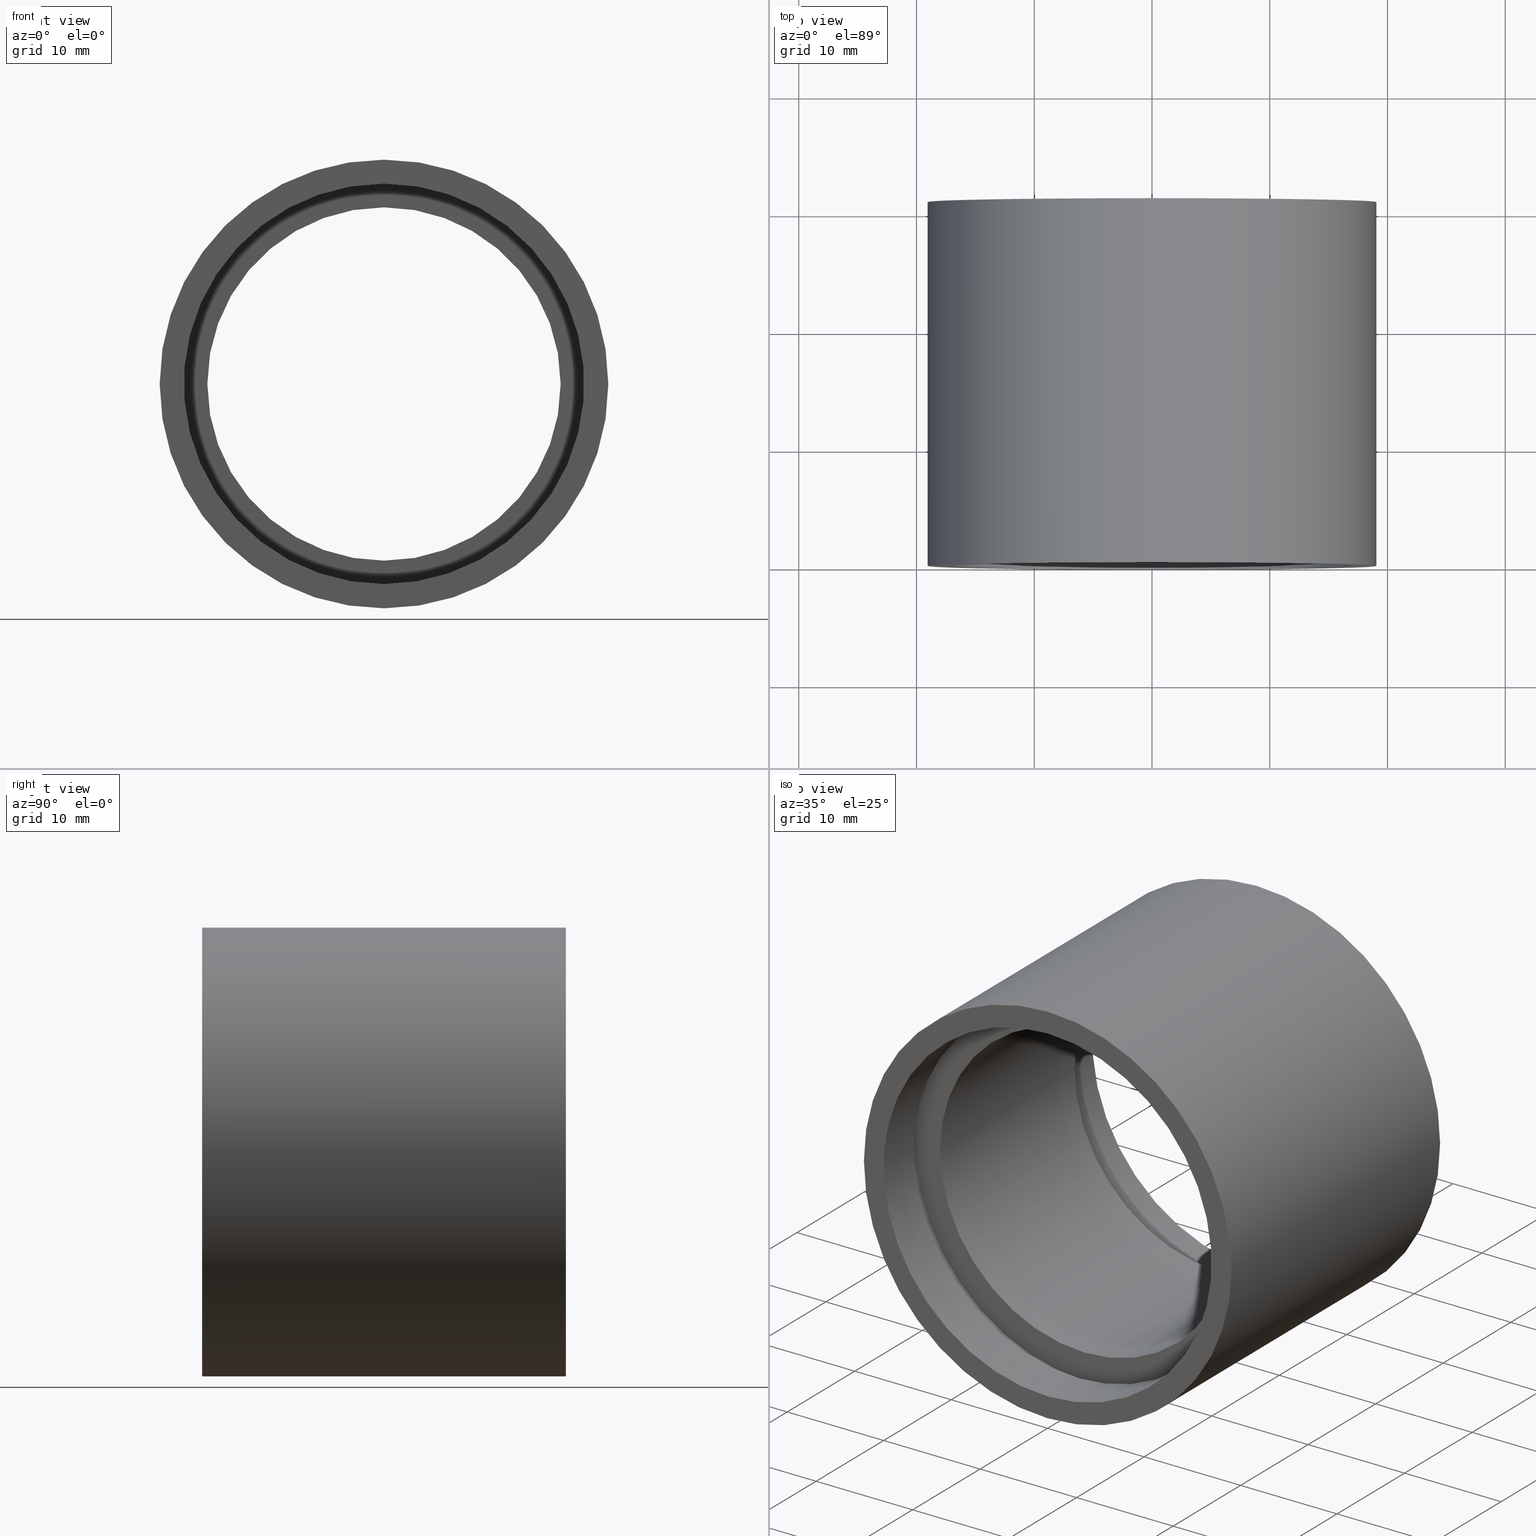
[diagram: canonical four-view strip — front | top / right | iso, engineering-drawing reading convention]
A machine part, canonical four-view strip (front | top / right | iso — engineering-drawing reading convention). The complete STEP part file that produces these views, byte-faithful:
ISO-10303-21;
HEADER;
FILE_DESCRIPTION (( 'STEP AP214' ),
    '1' );
FILE_NAME ('503042.STEP',
    '2019-09-06T03:13:48',
    ( '' ),
    ( '' ),
    'SwSTEP 2.0',
    'SolidWorks 2016',
    '' );
FILE_SCHEMA (( 'AUTOMOTIVE_DESIGN' ));
ENDSEC;

DATA;
#1 = AXIS2_PLACEMENT_3D ( 'NONE', #426, #274, #476 ) ;
#2 = COLOUR_RGB ( '',1.000000000000000000, 1.000000000000000000, 1.000000000000000000 ) ;
#3 = PRESENTATION_LAYER_ASSIGNMENT (  '', '', ( #36 ) ) ;
#4 = VECTOR ( 'NONE', #438, 1000.000000000000000 ) ;
#5 = EDGE_LOOP ( 'NONE', ( #102, #66 ) ) ;
#6 = CIRCLE ( 'NONE', #462, 15.00000000000001800 ) ;
#7 = AXIS2_PLACEMENT_3D ( 'NONE', #107, #63, #256 ) ;
#8 = VERTEX_POINT ( 'NONE', #590 ) ;
#9 = FILL_AREA_STYLE ('',( #364 ) ) ;
#10 = ORIENTED_EDGE ( 'NONE', *, *, #419, .T. ) ;
#11 = COLOUR_RGB ( '',1.000000000000000000, 1.000000000000000000, 1.000000000000000000 ) ;
#12 = CARTESIAN_POINT ( 'NONE',  ( 0.0000000000000000000, 161.3761669434274500, 0.0000000000000000000 ) ) ;
#13 = VERTEX_POINT ( 'NONE', #588 ) ;
#14 = CARTESIAN_POINT ( 'NONE',  ( 0.0000000000000000000, 161.3761669434274500, 0.0000000000000000000 ) ) ;
#15 = COLOUR_RGB ( '',1.000000000000000000, 1.000000000000000000, 1.000000000000000000 ) ;
#16 = ORIENTED_EDGE ( 'NONE', *, *, #591, .T. ) ;
#17 = PRESENTATION_STYLE_ASSIGNMENT (( #259 ) ) ;
#18 = DIRECTION ( 'NONE',  ( -0.0000000000000000000, 1.000000000000000000, -0.0000000000000000000 ) ) ;
#19 = PLANE ( 'NONE',  #288 ) ;
#20 = DIRECTION ( 'NONE',  ( -0.0000000000000000000, 1.000000000000000000, -0.0000000000000000000 ) ) ;
#21 = DIRECTION ( 'NONE',  ( 0.0000000000000000000, 0.0000000000000000000, 1.000000000000000000 ) ) ;
#22 = SURFACE_SIDE_STYLE ('',( #59 ) ) ;
#23 = CARTESIAN_POINT ( 'NONE',  ( 0.0000000000000000000, 5.499999999999976900, 0.0000000000000000000 ) ) ;
#24 = EDGE_LOOP ( 'NONE', ( #579, #221, #175, #420 ) ) ;
#25 = CIRCLE ( 'NONE', #84, 17.60000000000001600 ) ;
#26 =( NAMED_UNIT ( * ) PLANE_ANGLE_UNIT ( ) SI_UNIT ( $, .RADIAN. ) );
#27 = DIRECTION ( 'NONE',  ( -0.0000000000000000000, 1.000000000000000000, -0.0000000000000000000 ) ) ;
#28 = CARTESIAN_POINT ( 'NONE',  ( 0.0000000000000000000, 161.3761669434274500, 17.60000000000002300 ) ) ;
#29 = EDGE_CURVE ( 'NONE', #100, #381, #222, .T. ) ;
#30 =( NAMED_UNIT ( * ) PLANE_ANGLE_UNIT ( ) SI_UNIT ( $, .RADIAN. ) );
#31 = CARTESIAN_POINT ( 'NONE',  ( 0.0000000000000000000, 25.39999999999997700, 17.60000000000001600 ) ) ;
#32 = ORIENTED_EDGE ( 'NONE', *, *, #467, .F. ) ;
#33 = STYLED_ITEM ( 'NONE', ( #622 ), #94 ) ;
#34 = VECTOR ( 'NONE', #71, 1000.000000000000000 ) ;
#35 = CARTESIAN_POINT ( 'NONE',  ( 0.0000000000000000000, 5.499999999999976900, 15.00000000000001800 ) ) ;
#36 = STYLED_ITEM ( 'NONE', ( #350 ), #443 ) ;
#37 = CARTESIAN_POINT ( 'NONE',  ( 0.0000000000000000000, 30.89999999999998400, 17.00000000000002100 ) ) ;
#38 =( LENGTH_UNIT ( ) NAMED_UNIT ( * ) SI_UNIT ( .MILLI., .METRE. ) );
#39 = DIRECTION ( 'NONE',  ( -0.0000000000000000000, 1.000000000000000000, -0.0000000000000000000 ) ) ;
#40 =( GEOMETRIC_REPRESENTATION_CONTEXT ( 3 ) GLOBAL_UNCERTAINTY_ASSIGNED_CONTEXT ( ( #353 ) ) GLOBAL_UNIT_ASSIGNED_CONTEXT ( ( #226, #490, #388 ) ) REPRESENTATION_CONTEXT ( 'NONE', 'WORKASPACE' ) );
#41 = ADVANCED_FACE ( 'NONE', ( #165, #305 ), #197, .F. ) ;
#42 = LINE ( 'NONE', #199, #252 ) ;
#43 = CYLINDRICAL_SURFACE ( 'NONE', #198, 17.60000000000002300 ) ;
#44 = DIRECTION ( 'NONE',  ( 1.000000000000000000, 0.0000000000000000000, 0.0000000000000000000 ) ) ;
#45 = ADVANCED_FACE ( 'NONE', ( #454 ), #397, .T. ) ;
#46 =( NAMED_UNIT ( * ) PLANE_ANGLE_UNIT ( ) SI_UNIT ( $, .RADIAN. ) );
#47 = EDGE_LOOP ( 'NONE', ( #95, #119, #55, #582 ) ) ;
#48 = LINE ( 'NONE', #28, #34 ) ;
#49 = UNCERTAINTY_MEASURE_WITH_UNIT (LENGTH_MEASURE( 1.000000000000000100E-005 ), #238, 'distance_accuracy_value', 'NONE');
#50 = AXIS2_PLACEMENT_3D ( 'NONE', #14, #64, #321 ) ;
#51 = FACE_OUTER_BOUND ( 'NONE', #440, .T. ) ;
#52 = ADVANCED_FACE ( 'NONE', ( #293, #540 ), #412, .F. ) ;
#53 = AXIS2_PLACEMENT_3D ( 'NONE', #12, #463, #328 ) ;
#54 = EDGE_LOOP ( 'NONE', ( #183, #494 ) ) ;
#55 = ORIENTED_EDGE ( 'NONE', *, *, #559, .T. ) ;
#56 = DIRECTION ( 'NONE',  ( -0.0000000000000000000, 1.000000000000000000, -0.0000000000000000000 ) ) ;
#57 = EDGE_CURVE ( 'NONE', #249, #99, #480, .T. ) ;
#58 = EDGE_LOOP ( 'NONE', ( #470, #499 ) ) ;
#59 = SURFACE_STYLE_FILL_AREA ( #208 ) ;
#60 = ORIENTED_EDGE ( 'NONE', *, *, #500, .F. ) ;
#61 = AXIS2_PLACEMENT_3D ( 'NONE', #409, #410, #415 ) ;
#62 = AXIS2_PLACEMENT_3D ( 'NONE', #106, #465, #157 ) ;
#63 = DIRECTION ( 'NONE',  ( -0.0000000000000000000, 1.000000000000000000, -0.0000000000000000000 ) ) ;
#64 = DIRECTION ( 'NONE',  ( -0.0000000000000000000, 1.000000000000000000, -0.0000000000000000000 ) ) ;
#65 = DIRECTION ( 'NONE',  ( -0.0000000000000000000, 1.000000000000000000, -0.0000000000000000000 ) ) ;
#66 = ORIENTED_EDGE ( 'NONE', *, *, #228, .F. ) ;
#67 = LINE ( 'NONE', #163, #294 ) ;
#68 = CARTESIAN_POINT ( 'NONE',  ( 17.60000000000001600, 26.39999999999997700, 0.0000000000000000000 ) ) ;
#69 = DIRECTION ( 'NONE',  ( -0.0000000000000000000, 1.000000000000000000, -0.0000000000000000000 ) ) ;
#70 =( NAMED_UNIT ( * ) PLANE_ANGLE_UNIT ( ) SI_UNIT ( $, .RADIAN. ) );
#71 = DIRECTION ( 'NONE',  ( -0.0000000000000000000, 1.000000000000000000, -0.0000000000000000000 ) ) ;
#72 = ORIENTED_EDGE ( 'NONE', *, *, #477, .F. ) ;
#73 = EDGE_LOOP ( 'NONE', ( #261, #285, #372, #241 ) ) ;
#74 = FILL_AREA_STYLE ('',( #277 ) ) ;
#75 = CARTESIAN_POINT ( 'NONE',  ( 0.0000000000000000000, 161.3761669434274500, 0.0000000000000000000 ) ) ;
#76 = CIRCLE ( 'NONE', #401, 17.60000000000002300 ) ;
#77 = DIRECTION ( 'NONE',  ( -0.0000000000000000000, 1.000000000000000000, -0.0000000000000000000 ) ) ;
#78 = PRESENTATION_LAYER_ASSIGNMENT (  '', '', ( #97 ) ) ;
#79 = CARTESIAN_POINT ( 'NONE',  ( 0.0000000000000000000, 26.39999999999997700, 17.00000000000002100 ) ) ;
#80 = DIRECTION ( 'NONE',  ( 0.0000000000000000000, 0.0000000000000000000, 1.000000000000000000 ) ) ;
#81 = PLANE ( 'NONE',  #342 ) ;
#82 = CYLINDRICAL_SURFACE ( 'NONE', #50, 17.00000000000002100 ) ;
#83 = VERTEX_POINT ( 'NONE', #147 ) ;
#84 = AXIS2_PLACEMENT_3D ( 'NONE', #519, #379, #521 ) ;
#85 = CIRCLE ( 'NONE', #349, 17.60000000000002300 ) ;
#86 = APPLICATION_PROTOCOL_DEFINITION ( 'draft international standard', 'automotive_design', 1998, #352 ) ;
#87 = DIRECTION ( 'NONE',  ( 0.0000000000000000000, 0.0000000000000000000, 1.000000000000000000 ) ) ;
#88 = ORIENTED_EDGE ( 'NONE', *, *, #214, .T. ) ;
#89 = ORIENTED_EDGE ( 'NONE', *, *, #329, .T. ) ;
#90 = ADVANCED_FACE ( 'NONE', ( #166 ), #563, .F. ) ;
#91 = COLOUR_RGB ( '',1.000000000000000000, 1.000000000000000000, 1.000000000000000000 ) ;
#92 = EDGE_CURVE ( 'NONE', #624, #100, #42, .T. ) ;
#93 = AXIS2_PLACEMENT_3D ( 'NONE', #436, #27, #130 ) ;
#94 = ADVANCED_FACE ( 'NONE', ( #502 ), #460, .F. ) ;
#95 = ORIENTED_EDGE ( 'NONE', *, *, #457, .F. ) ;
#96 = CIRCLE ( 'NONE', #520, 17.00000000000002100 ) ;
#97 = STYLED_ITEM ( 'NONE', ( #525 ), #543 ) ;
#98 = AXIS2_PLACEMENT_3D ( 'NONE', #370, #552, #310 ) ;
#99 = VERTEX_POINT ( 'NONE', #160 ) ;
#100 = VERTEX_POINT ( 'NONE', #466 ) ;
#101 = COLOUR_RGB ( '',1.000000000000000000, 1.000000000000000000, 1.000000000000000000 ) ;
#102 = ORIENTED_EDGE ( 'NONE', *, *, #121, .F. ) ;
#103 = CARTESIAN_POINT ( 'NONE',  ( 0.0000000000000000000, 5.499999999999976900, 0.0000000000000000000 ) ) ;
#104 = DIRECTION ( 'NONE',  ( 0.0000000000000000000, -1.000000000000000000, 0.0000000000000000000 ) ) ;
#105 = CARTESIAN_POINT ( 'NONE',  ( 0.0000000000000000000, 161.3761669434274500, 19.05000000000002200 ) ) ;
#106 = CARTESIAN_POINT ( 'NONE',  ( 0.0000000000000000000, 26.39999999999997700, 0.0000000000000000000 ) ) ;
#107 = CARTESIAN_POINT ( 'NONE',  ( 0.0000000000000000000, 25.39999999999997700, 0.0000000000000000000 ) ) ;
#108 = FACE_BOUND ( 'NONE', #137, .T. ) ;
#109 = VERTEX_POINT ( 'NONE', #512 ) ;
#110 = DIRECTION ( 'NONE',  ( 0.0000000000000000000, 0.0000000000000000000, 1.000000000000000000 ) ) ;
#111 = EDGE_CURVE ( 'NONE', #13, #624, #140, .T. ) ;
#112 = DIRECTION ( 'NONE',  ( -0.0000000000000000000, 1.000000000000000000, -0.0000000000000000000 ) ) ;
#113 = DIRECTION ( 'NONE',  ( -0.0000000000000000000, 1.000000000000000000, -0.0000000000000000000 ) ) ;
#114 = CARTESIAN_POINT ( 'NONE',  ( 0.0000000000000000000, 4.499999999999976000, 17.60000000000002300 ) ) ;
#115 = FILL_AREA_STYLE_COLOUR ( '', #101 ) ;
#116 = ORIENTED_EDGE ( 'NONE', *, *, #146, .F. ) ;
#117 = ORIENTED_EDGE ( 'NONE', *, *, #604, .F. ) ;
#118 = FACE_BOUND ( 'NONE', #143, .T. ) ;
#119 = ORIENTED_EDGE ( 'NONE', *, *, #156, .T. ) ;
#120 = DIRECTION ( 'NONE',  ( 0.0000000000000000000, -0.0000000000000000000, -1.000000000000000000 ) ) ;
#121 = EDGE_CURVE ( 'NONE', #242, #109, #441, .T. ) ;
#122 = SURFACE_STYLE_USAGE ( .BOTH. , #171 ) ;
#123 = PLANE ( 'NONE',  #336 ) ;
#124 = CARTESIAN_POINT ( 'NONE',  ( 2.332952152375710400E-015, 161.3761669434274500, -19.05000000000002200 ) ) ;
#125 = MECHANICAL_DESIGN_GEOMETRIC_PRESENTATION_REPRESENTATION (  '', ( #33 ), #542 ) ;
#126 = ORIENTED_EDGE ( 'NONE', *, *, #92, .T. ) ;
#127 = FILL_AREA_STYLE_COLOUR ( '', #91 ) ;
#128 = AXIS2_PLACEMENT_3D ( 'NONE', #375, #20, #605 ) ;
#129 = CARTESIAN_POINT ( 'NONE',  ( 0.0000000000000000000, 161.3761669434274500, 17.00000000000002100 ) ) ;
#130 = DIRECTION ( 'NONE',  ( 0.0000000000000000000, 0.0000000000000000000, 1.000000000000000000 ) ) ;
#131 = VECTOR ( 'NONE', #286, 1000.000000000000000 ) ;
#132 = ORIENTED_EDGE ( 'NONE', *, *, #29, .T. ) ;
#133 = AXIS2_PLACEMENT_3D ( 'NONE', #306, #56, #551 ) ;
#134 = ADVANCED_FACE ( 'NONE', ( #585 ), #167, .F. ) ;
#135 = PRODUCT_CONTEXT ( 'NONE', #541, 'mechanical' ) ;
#136 =( NAMED_UNIT ( * ) PLANE_ANGLE_UNIT ( ) SI_UNIT ( $, .RADIAN. ) );
#137 = EDGE_LOOP ( 'NONE', ( #503, #439 ) ) ;
#138 = COLOUR_RGB ( '',1.000000000000000000, 1.000000000000000000, 1.000000000000000000 ) ;
#139 = VERTEX_POINT ( 'NONE', #114 ) ;
#140 = CIRCLE ( 'NONE', #455, 15.00000000000001800 ) ;
#141 = AXIS2_PLACEMENT_3D ( 'NONE', #348, #297, #44 ) ;
#142 = EDGE_CURVE ( 'NONE', #618, #83, #572, .T. ) ;
#143 = EDGE_LOOP ( 'NONE', ( #323, #211 ) ) ;
#144 = ORIENTED_EDGE ( 'NONE', *, *, #291, .T. ) ;
#145 = VECTOR ( 'NONE', #377, 1000.000000000000000 ) ;
#146 = EDGE_CURVE ( 'NONE', #356, #510, #326, .T. ) ;
#147 = CARTESIAN_POINT ( 'NONE',  ( 0.0000000000000000000, 30.89999999999998400, 19.05000000000002200 ) ) ;
#148 =( NAMED_UNIT ( * ) SI_UNIT ( $, .STERADIAN. ) SOLID_ANGLE_UNIT ( ) );
#149 = EDGE_CURVE ( 'NONE', #366, #335, #550, .T. ) ;
#150 =( LENGTH_UNIT ( ) NAMED_UNIT ( * ) SI_UNIT ( .MILLI., .METRE. ) );
#151 = UNCERTAINTY_MEASURE_WITH_UNIT (LENGTH_MEASURE( 1.000000000000000100E-005 ), #560, 'distance_accuracy_value', 'NONE');
#152 = FACE_OUTER_BOUND ( 'NONE', #430, .T. ) ;
#153 = ORIENTED_EDGE ( 'NONE', *, *, #239, .F. ) ;
#154 = VECTOR ( 'NONE', #320, 1000.000000000000000 ) ;
#155 = CARTESIAN_POINT ( 'NONE',  ( 0.0000000000000000000, 161.3761669434274500, 0.0000000000000000000 ) ) ;
#156 = EDGE_CURVE ( 'NONE', #335, #223, #313, .T. ) ;
#157 = DIRECTION ( 'NONE',  ( 0.0000000000000000000, 0.0000000000000000000, 1.000000000000000000 ) ) ;
#158 = PRESENTATION_STYLE_ASSIGNMENT (( #621 ) ) ;
#159 =( GEOMETRIC_REPRESENTATION_CONTEXT ( 3 ) GLOBAL_UNCERTAINTY_ASSIGNED_CONTEXT ( ( #332 ) ) GLOBAL_UNIT_ASSIGNED_CONTEXT ( ( #433, #70, #179 ) ) REPRESENTATION_CONTEXT ( 'NONE', 'WORKASPACE' ) );
#160 = CARTESIAN_POINT ( 'NONE',  ( 2.155378366499343600E-015, 25.39999999999997700, -17.60000000000001600 ) ) ;
#161 = FACE_BOUND ( 'NONE', #496, .T. ) ;
#162 = DIRECTION ( 'NONE',  ( 0.0000000000000000000, 0.0000000000000000000, 1.000000000000000000 ) ) ;
#163 = CARTESIAN_POINT ( 'NONE',  ( 0.0000000000000000000, 161.3761669434274500, 17.00000000000002100 ) ) ;
#164 = DIRECTION ( 'NONE',  ( -0.0000000000000000000, 1.000000000000000000, -0.0000000000000000000 ) ) ;
#165 = FACE_OUTER_BOUND ( 'NONE', #384, .T. ) ;
#166 = FACE_OUTER_BOUND ( 'NONE', #184, .T. ) ;
#167 = CYLINDRICAL_SURFACE ( 'NONE', #53, 15.00000000000001800 ) ;
#168 = DIRECTION ( 'NONE',  ( 0.0000000000000000000, 0.0000000000000000000, 1.000000000000000000 ) ) ;
#169 = AXIS2_PLACEMENT_3D ( 'NONE', #613, #267, #280 ) ;
#170 = CARTESIAN_POINT ( 'NONE',  ( 0.0000000000000000000, 26.39999999999997700, 17.60000000000001600 ) ) ;
#171 = SURFACE_SIDE_STYLE ('',( #347 ) ) ;
#172 = VERTEX_POINT ( 'NONE', #220 ) ;
#173 = DIRECTION ( 'NONE',  ( -0.0000000000000000000, 1.000000000000000000, -0.0000000000000000000 ) ) ;
#174 = CIRCLE ( 'NONE', #62, 17.60000000000001600 ) ;
#175 = ORIENTED_EDGE ( 'NONE', *, *, #340, .T. ) ;
#176 = CIRCLE ( 'NONE', #395, 17.60000000000002300 ) ;
#177 = DIRECTION ( 'NONE',  ( 0.0000000000000000000, -0.0000000000000000000, -1.000000000000000000 ) ) ;
#178 = PRESENTATION_LAYER_ASSIGNMENT (  '', '', ( #298 ) ) ;
#179 =( NAMED_UNIT ( * ) SI_UNIT ( $, .STERADIAN. ) SOLID_ANGLE_UNIT ( ) );
#180 = DIRECTION ( 'NONE',  ( 0.0000000000000000000, 0.0000000000000000000, 1.000000000000000000 ) ) ;
#181 = CARTESIAN_POINT ( 'NONE',  ( 17.00000000000002100, 4.499999999999984000, 0.0000000000000000000 ) ) ;
#182 = EDGE_CURVE ( 'NONE', #99, #493, #423, .T. ) ;
#183 = ORIENTED_EDGE ( 'NONE', *, *, #491, .F. ) ;
#184 = EDGE_LOOP ( 'NONE', ( #580, #489, #382, #523 ) ) ;
#185 = CYLINDRICAL_SURFACE ( 'NONE', #595, 17.60000000000002300 ) ;
#186 = FILL_AREA_STYLE ('',( #290 ) ) ;
#187 = CARTESIAN_POINT ( 'NONE',  ( 0.0000000000000000000, 25.39999999999997700, 0.0000000000000000000 ) ) ;
#188 = DIRECTION ( 'NONE',  ( -0.0000000000000000000, 1.000000000000000000, -0.0000000000000000000 ) ) ;
#189 = CLOSED_SHELL ( 'NONE', ( #442, #237, #134, #296, #443, #45, #41, #240, #346, #543, #451, #90, #52, #94, #589, #295, #544, #537 ) ) ;
#190 = ORIENTED_EDGE ( 'NONE', *, *, #244, .T. ) ;
#191 = CARTESIAN_POINT ( 'NONE',  ( 0.0000000000000000000, -2.775557561562891400E-014, 0.0000000000000000000 ) ) ;
#192 = EDGE_CURVE ( 'NONE', #501, #242, #67, .T. ) ;
#193 = AXIS2_PLACEMENT_3D ( 'NONE', #224, #279, #386 ) ;
#194 = LINE ( 'NONE', #331, #248 ) ;
#195 = ORIENTED_EDGE ( 'NONE', *, *, #538, .F. ) ;
#196 = VECTOR ( 'NONE', #565, 1000.000000000000000 ) ;
#197 = PLANE ( 'NONE',  #98 ) ;
#198 = AXIS2_PLACEMENT_3D ( 'NONE', #75, #568, #333 ) ;
#199 = CARTESIAN_POINT ( 'NONE',  ( 0.0000000000000000000, 161.3761669434274500, 15.00000000000001800 ) ) ;
#200 = EDGE_LOOP ( 'NONE', ( #195, #548, #144, #153 ) ) ;
#201 = DIRECTION ( 'NONE',  ( 0.0000000000000000000, 0.0000000000000000000, 1.000000000000000000 ) ) ;
#202 = EDGE_LOOP ( 'NONE', ( #609, #10, #391, #546 ) ) ;
#203 = EDGE_CURVE ( 'NONE', #99, #249, #25, .T. ) ;
#204 =( GEOMETRIC_REPRESENTATION_CONTEXT ( 3 ) GLOBAL_UNCERTAINTY_ASSIGNED_CONTEXT ( ( #49 ) ) GLOBAL_UNIT_ASSIGNED_CONTEXT ( ( #238, #136, #400 ) ) REPRESENTATION_CONTEXT ( 'NONE', 'WORKASPACE' ) );
#205 = DIRECTION ( 'NONE',  ( -0.0000000000000000000, 1.000000000000000000, -0.0000000000000000000 ) ) ;
#206 = FILL_AREA_STYLE ('',( #558 ) ) ;
#207 = MECHANICAL_DESIGN_GEOMETRIC_PRESENTATION_REPRESENTATION (  '', ( #97 ), #318 ) ;
#208 = FILL_AREA_STYLE ('',( #390 ) ) ;
#209 = DIRECTION ( 'NONE',  ( 0.0000000000000000000, 0.0000000000000000000, 1.000000000000000000 ) ) ;
#210 = CIRCLE ( 'NONE', #392, 17.00000000000002100 ) ;
#211 = ORIENTED_EDGE ( 'NONE', *, *, #457, .T. ) ;
#212 = CIRCLE ( 'NONE', #549, 17.00000000000002100 ) ;
#213 =( NAMED_UNIT ( * ) PLANE_ANGLE_UNIT ( ) SI_UNIT ( $, .RADIAN. ) );
#214 = EDGE_CURVE ( 'NONE', #482, #510, #176, .T. ) ;
#215 =( NAMED_UNIT ( * ) SI_UNIT ( $, .STERADIAN. ) SOLID_ANGLE_UNIT ( ) );
#216 = DIRECTION ( 'NONE',  ( -0.0000000000000000000, 1.000000000000000000, -0.0000000000000000000 ) ) ;
#217 = CARTESIAN_POINT ( 'NONE',  ( 2.081899558550503000E-015, 30.89999999999998400, -17.00000000000002100 ) ) ;
#218 = CARTESIAN_POINT ( 'NONE',  ( 0.0000000000000000000, -2.775557561562891400E-014, 0.0000000000000000000 ) ) ;
#219 = DIRECTION ( 'NONE',  ( 0.0000000000000000000, 0.0000000000000000000, 1.000000000000000000 ) ) ;
#220 = CARTESIAN_POINT ( 'NONE',  ( 2.332952152375710400E-015, -2.775557561562891400E-014, -19.05000000000002200 ) ) ;
#221 = ORIENTED_EDGE ( 'NONE', *, *, #149, .F. ) ;
#222 = CIRCLE ( 'NONE', #7, 15.00000000000001800 ) ;
#223 = VERTEX_POINT ( 'NONE', #217 ) ;
#224 = CARTESIAN_POINT ( 'NONE',  ( 15.00000000000001800, 5.499999999999984000, 0.0000000000000000000 ) ) ;
#225 =( GEOMETRIC_REPRESENTATION_CONTEXT ( 3 ) GLOBAL_UNCERTAINTY_ASSIGNED_CONTEXT ( ( #151 ) ) GLOBAL_UNIT_ASSIGNED_CONTEXT ( ( #560, #26, #380 ) ) REPRESENTATION_CONTEXT ( 'NONE', 'WORKASPACE' ) );
#226 =( LENGTH_UNIT ( ) NAMED_UNIT ( * ) SI_UNIT ( .MILLI., .METRE. ) );
#227 = CARTESIAN_POINT ( 'NONE',  ( 1.836970198721032000E-015, 161.3761669434274500, -15.00000000000001800 ) ) ;
#228 = EDGE_CURVE ( 'NONE', #109, #242, #96, .T. ) ;
#229 = AXIS2_PLACEMENT_3D ( 'NONE', #557, #112, #268 ) ;
#230 = CARTESIAN_POINT ( 'NONE',  ( 0.0000000000000000000, 161.3761669434274500, 0.0000000000000000000 ) ) ;
#231 = LINE ( 'NONE', #129, #4 ) ;
#232 = ORIENTED_EDGE ( 'NONE', *, *, #427, .T. ) ;
#233 = FACE_OUTER_BOUND ( 'NONE', #73, .T. ) ;
#234 = DIRECTION ( 'NONE',  ( 0.0000000000000000000, 0.0000000000000000000, 1.000000000000000000 ) ) ;
#235 = LINE ( 'NONE', #227, #131 ) ;
#236 =( NAMED_UNIT ( * ) SI_UNIT ( $, .STERADIAN. ) SOLID_ANGLE_UNIT ( ) );
#237 = ADVANCED_FACE ( 'NONE', ( #263 ), #43, .F. ) ;
#238 =( LENGTH_UNIT ( ) NAMED_UNIT ( * ) SI_UNIT ( .MILLI., .METRE. ) );
#239 = EDGE_CURVE ( 'NONE', #139, #482, #48, .T. ) ;
#240 = ADVANCED_FACE ( 'NONE', ( #471 ), #358, .T. ) ;
#241 = ORIENTED_EDGE ( 'NONE', *, *, #361, .F. ) ;
#242 = VERTEX_POINT ( 'NONE', #610 ) ;
#243 = DIRECTION ( 'NONE',  ( -0.0000000000000000000, 1.000000000000000000, -0.0000000000000000000 ) ) ;
#244 = EDGE_CURVE ( 'NONE', #501, #351, #212, .T. ) ;
#245 = SURFACE_STYLE_FILL_AREA ( #186 ) ;
#246 = PRODUCT ( '503042', '503042', '', ( #135 ) ) ;
#247 = AXIS2_PLACEMENT_3D ( 'NONE', #327, #65, #110 ) ;
#248 = VECTOR ( 'NONE', #615, 1000.000000000000000 ) ;
#249 = VERTEX_POINT ( 'NONE', #31 ) ;
#250 = EDGE_CURVE ( 'NONE', #624, #13, #374, .T. ) ;
#251 = EDGE_LOOP ( 'NONE', ( #539, #292, #602, #594 ) ) ;
#252 = VECTOR ( 'NONE', #205, 1000.000000000000000 ) ;
#253 = CIRCLE ( 'NONE', #229, 17.00000000000002100 ) ;
#254 = VERTEX_POINT ( 'NONE', #170 ) ;
#255 = DIRECTION ( 'NONE',  ( 0.0000000000000000000, 0.0000000000000000000, 1.000000000000000000 ) ) ;
#256 = DIRECTION ( 'NONE',  ( 0.0000000000000000000, 0.0000000000000000000, 1.000000000000000000 ) ) ;
#257 = AXIS2_PLACEMENT_3D ( 'NONE', #218, #319, #162 ) ;
#258 = DIRECTION ( 'NONE',  ( -0.0000000000000000000, 1.000000000000000000, -0.0000000000000000000 ) ) ;
#259 = SURFACE_STYLE_USAGE ( .BOTH. , #556 ) ;
#260 = PRESENTATION_STYLE_ASSIGNMENT (( #576 ) ) ;
#261 = ORIENTED_EDGE ( 'NONE', *, *, #203, .F. ) ;
#262 =( GEOMETRIC_REPRESENTATION_CONTEXT ( 3 ) GLOBAL_UNCERTAINTY_ASSIGNED_CONTEXT ( ( #614 ) ) GLOBAL_UNIT_ASSIGNED_CONTEXT ( ( #316, #213, #561 ) ) REPRESENTATION_CONTEXT ( 'NONE', 'WORKASPACE' ) );
#263 = FACE_OUTER_BOUND ( 'NONE', #200, .T. ) ;
#264 = STYLED_ITEM ( 'NONE', ( #260 ), #534 ) ;
#265 = DIRECTION ( 'NONE',  ( -0.0000000000000000000, 1.000000000000000000, -0.0000000000000000000 ) ) ;
#266 = SURFACE_SIDE_STYLE ('',( #569 ) ) ;
#267 = DIRECTION ( 'NONE',  ( -0.0000000000000000000, 1.000000000000000000, -0.0000000000000000000 ) ) ;
#268 = DIRECTION ( 'NONE',  ( 0.0000000000000000000, 0.0000000000000000000, 1.000000000000000000 ) ) ;
#269 = DIRECTION ( 'NONE',  ( 0.0000000000000000000, 0.0000000000000000000, 1.000000000000000000 ) ) ;
#270 = CARTESIAN_POINT ( 'NONE',  ( 0.0000000000000000000, 5.499999999999976900, 0.0000000000000000000 ) ) ;
#271 = CARTESIAN_POINT ( 'NONE',  ( 2.155378366499344400E-015, 5.499999999999976900, -17.60000000000002300 ) ) ;
#272 = ORIENTED_EDGE ( 'NONE', *, *, #448, .T. ) ;
#273 = COLOUR_RGB ( '',1.000000000000000000, 1.000000000000000000, 1.000000000000000000 ) ;
#274 = DIRECTION ( 'NONE',  ( -0.0000000000000000000, 1.000000000000000000, -0.0000000000000000000 ) ) ;
#275 = ORIENTED_EDGE ( 'NONE', *, *, #192, .T. ) ;
#276 = STYLED_ITEM ( 'NONE', ( #17 ), #134 ) ;
#277 = FILL_AREA_STYLE_COLOUR ( '', #11 ) ;
#278 = CARTESIAN_POINT ( 'NONE',  ( 0.0000000000000000000, -2.775557561562891400E-014, 0.0000000000000000000 ) ) ;
#279 = DIRECTION ( 'NONE',  ( -0.0000000000000000000, 1.000000000000000000, 0.0000000000000000000 ) ) ;
#280 = DIRECTION ( 'NONE',  ( 0.0000000000000000000, 0.0000000000000000000, 1.000000000000000000 ) ) ;
#281 = CARTESIAN_POINT ( 'NONE',  ( 0.0000000000000000000, 161.3761669434274500, 0.0000000000000000000 ) ) ;
#282 = UNCERTAINTY_MEASURE_WITH_UNIT (LENGTH_MEASURE( 1.000000000000000100E-005 ), #524, 'distance_accuracy_value', 'NONE');
#283 = ORIENTED_EDGE ( 'NONE', *, *, #329, .F. ) ;
#284 = VECTOR ( 'NONE', #173, 1000.000000000000000 ) ;
#285 = ORIENTED_EDGE ( 'NONE', *, *, #182, .T. ) ;
#286 = DIRECTION ( 'NONE',  ( -0.0000000000000000000, 1.000000000000000000, -0.0000000000000000000 ) ) ;
#287 = DIRECTION ( 'NONE',  ( -0.0000000000000000000, 1.000000000000000000, -0.0000000000000000000 ) ) ;
#288 = AXIS2_PLACEMENT_3D ( 'NONE', #68, #562, #468 ) ;
#289 = DIRECTION ( 'NONE',  ( -0.0000000000000000000, 1.000000000000000000, -0.0000000000000000000 ) ) ;
#290 = FILL_AREA_STYLE_COLOUR ( '', #2 ) ;
#291 = EDGE_CURVE ( 'NONE', #510, #482, #85, .T. ) ;
#292 = ORIENTED_EDGE ( 'NONE', *, *, #599, .T. ) ;
#293 = FACE_BOUND ( 'NONE', #459, .T. ) ;
#294 = VECTOR ( 'NONE', #164, 1000.000000000000000 ) ;
#295 = ADVANCED_FACE ( 'NONE', ( #555 ), #185, .F. ) ;
#296 = ADVANCED_FACE ( 'NONE', ( #233 ), #617, .F. ) ;
#297 = DIRECTION ( 'NONE',  ( 0.0000000000000000000, 0.0000000000000000000, 1.000000000000000000 ) ) ;
#298 = STYLED_ITEM ( 'NONE', ( #516 ), #537 ) ;
#299 = ORIENTED_EDGE ( 'NONE', *, *, #203, .T. ) ;
#300 = ORIENTED_EDGE ( 'NONE', *, *, #250, .F. ) ;
#301 = COLOUR_RGB ( '',1.000000000000000000, 1.000000000000000000, 1.000000000000000000 ) ;
#302 = EDGE_CURVE ( 'NONE', #493, #254, #449, .T. ) ;
#303 = CYLINDRICAL_SURFACE ( 'NONE', #547, 17.00000000000002100 ) ;
#304 = AXIS2_PLACEMENT_3D ( 'NONE', #389, #77, #435 ) ;
#305 = FACE_BOUND ( 'NONE', #407, .T. ) ;
#306 = CARTESIAN_POINT ( 'NONE',  ( 0.0000000000000000000, 161.3761669434274500, 0.0000000000000000000 ) ) ;
#307 = AXIS2_PLACEMENT_3D ( 'NONE', #23, #606, #21 ) ;
#308 = UNCERTAINTY_MEASURE_WITH_UNIT (LENGTH_MEASURE( 1.000000000000000100E-005 ), #38, 'distance_accuracy_value', 'NONE');
#309 =( NAMED_UNIT ( * ) PLANE_ANGLE_UNIT ( ) SI_UNIT ( $, .RADIAN. ) );
#310 = DIRECTION ( 'NONE',  ( 0.0000000000000000000, 0.0000000000000000000, 1.000000000000000000 ) ) ;
#311 = ORIENTED_EDGE ( 'NONE', *, *, #111, .F. ) ;
#312 =( GEOMETRIC_REPRESENTATION_CONTEXT ( 3 ) GLOBAL_UNCERTAINTY_ASSIGNED_CONTEXT ( ( #282 ) ) GLOBAL_UNIT_ASSIGNED_CONTEXT ( ( #524, #369, #215 ) ) REPRESENTATION_CONTEXT ( 'NONE', 'WORKASPACE' ) );
#313 = LINE ( 'NONE', #515, #196 ) ;
#314 = FILL_AREA_STYLE ('',( #337 ) ) ;
#315 = SHAPE_DEFINITION_REPRESENTATION ( #357, #446 ) ;
#316 =( LENGTH_UNIT ( ) NAMED_UNIT ( * ) SI_UNIT ( .MILLI., .METRE. ) );
#317 = SURFACE_STYLE_FILL_AREA ( #74 ) ;
#318 =( GEOMETRIC_REPRESENTATION_CONTEXT ( 3 ) GLOBAL_UNCERTAINTY_ASSIGNED_CONTEXT ( ( #308 ) ) GLOBAL_UNIT_ASSIGNED_CONTEXT ( ( #38, #30, #330 ) ) REPRESENTATION_CONTEXT ( 'NONE', 'WORKASPACE' ) );
#319 = DIRECTION ( 'NONE',  ( -0.0000000000000000000, 1.000000000000000000, -0.0000000000000000000 ) ) ;
#320 = DIRECTION ( 'NONE',  ( -0.0000000000000000000, 1.000000000000000000, -0.0000000000000000000 ) ) ;
#321 = DIRECTION ( 'NONE',  ( 0.0000000000000000000, 0.0000000000000000000, 1.000000000000000000 ) ) ;
#322 = DIRECTION ( 'NONE',  ( -0.0000000000000000000, 1.000000000000000000, -0.0000000000000000000 ) ) ;
#323 = ORIENTED_EDGE ( 'NONE', *, *, #149, .T. ) ;
#324 = ORIENTED_EDGE ( 'NONE', *, *, #57, .T. ) ;
#325 = PRESENTATION_LAYER_ASSIGNMENT (  '', '', ( #33 ) ) ;
#326 = LINE ( 'NONE', #607, #434 ) ;
#327 = CARTESIAN_POINT ( 'NONE',  ( 0.0000000000000000000, 30.89999999999998400, 0.0000000000000000000 ) ) ;
#328 = DIRECTION ( 'NONE',  ( 0.0000000000000000000, 0.0000000000000000000, 1.000000000000000000 ) ) ;
#329 = EDGE_CURVE ( 'NONE', #351, #109, #194, .T. ) ;
#330 =( NAMED_UNIT ( * ) SI_UNIT ( $, .STERADIAN. ) SOLID_ANGLE_UNIT ( ) );
#331 = CARTESIAN_POINT ( 'NONE',  ( 2.081899558550503000E-015, 161.3761669434274500, -17.00000000000002100 ) ) ;
#332 = UNCERTAINTY_MEASURE_WITH_UNIT (LENGTH_MEASURE( 1.000000000000000100E-005 ), #433, 'distance_accuracy_value', 'NONE');
#333 = DIRECTION ( 'NONE',  ( 0.0000000000000000000, 0.0000000000000000000, 1.000000000000000000 ) ) ;
#334 = CIRCLE ( 'NONE', #128, 19.05000000000002200 ) ;
#335 = VERTEX_POINT ( 'NONE', #573 ) ;
#336 = AXIS2_PLACEMENT_3D ( 'NONE', #181, #527, #120 ) ;
#337 = FILL_AREA_STYLE_COLOUR ( '', #15 ) ;
#338 = CARTESIAN_POINT ( 'NONE',  ( 0.0000000000000000000, 4.499999999999976000, 0.0000000000000000000 ) ) ;
#339 = CARTESIAN_POINT ( 'NONE',  ( 0.0000000000000000000, 26.39999999999997700, 0.0000000000000000000 ) ) ;
#340 = EDGE_CURVE ( 'NONE', #366, #396, #231, .T. ) ;
#341 = CARTESIAN_POINT ( 'NONE',  ( 0.0000000000000000000, 30.89999999999998400, 0.0000000000000000000 ) ) ;
#342 = AXIS2_PLACEMENT_3D ( 'NONE', #486, #577, #177 ) ;
#343 = CARTESIAN_POINT ( 'NONE',  ( 2.081899558550503000E-015, -2.775557561562891400E-014, -17.00000000000002100 ) ) ;
#344 = CIRCLE ( 'NONE', #93, 17.60000000000002300 ) ;
#345 = ORIENTED_EDGE ( 'NONE', *, *, #192, .F. ) ;
#346 = ADVANCED_FACE ( 'NONE', ( #108, #152 ), #81, .F. ) ;
#347 = SURFACE_STYLE_FILL_AREA ( #385 ) ;
#348 = CARTESIAN_POINT ( 'NONE',  ( 0.0000000000000000000, 0.0000000000000000000, 0.0000000000000000000 ) ) ;
#349 = AXIS2_PLACEMENT_3D ( 'NONE', #518, #216, #564 ) ;
#350 = PRESENTATION_STYLE_ASSIGNMENT (( #517 ) ) ;
#351 = VERTEX_POINT ( 'NONE', #343 ) ;
#352 = APPLICATION_CONTEXT ( 'automotive_design' ) ;
#353 = UNCERTAINTY_MEASURE_WITH_UNIT (LENGTH_MEASURE( 1.000000000000000100E-005 ), #226, 'distance_accuracy_value', 'NONE');
#354 = AXIS2_PLACEMENT_3D ( 'NONE', #230, #287, #474 ) ;
#355 = LINE ( 'NONE', #484, #284 ) ;
#356 = VERTEX_POINT ( 'NONE', #487 ) ;
#357 = PRODUCT_DEFINITION_SHAPE ( 'NONE', 'NONE',  #416 ) ;
#358 = CYLINDRICAL_SURFACE ( 'NONE', #169, 19.05000000000002200 ) ;
#359 = PRESENTATION_LAYER_ASSIGNMENT (  '', '', ( #276 ) ) ;
#360 = FACE_OUTER_BOUND ( 'NONE', #24, .T. ) ;
#361 = EDGE_CURVE ( 'NONE', #249, #254, #355, .T. ) ;
#362 = ORIENTED_EDGE ( 'NONE', *, *, #604, .T. ) ;
#363 = ORIENTED_EDGE ( 'NONE', *, *, #467, .T. ) ;
#364 = FILL_AREA_STYLE_COLOUR ( '', #273 ) ;
#365 = FACE_OUTER_BOUND ( 'NONE', #611, .T. ) ;
#366 = VERTEX_POINT ( 'NONE', #79 ) ;
#367 = DIRECTION ( 'NONE',  ( 0.0000000000000000000, -0.0000000000000000000, -1.000000000000000000 ) ) ;
#368 = MECHANICAL_DESIGN_GEOMETRIC_PRESENTATION_REPRESENTATION (  '', ( #298 ), #159 ) ;
#369 =( NAMED_UNIT ( * ) PLANE_ANGLE_UNIT ( ) SI_UNIT ( $, .RADIAN. ) );
#370 = CARTESIAN_POINT ( 'NONE',  ( 17.00000000000002100, -1.527582111260147300E-014, 0.0000000000000000000 ) ) ;
#371 = MECHANICAL_DESIGN_GEOMETRIC_PRESENTATION_REPRESENTATION (  '', ( #276 ), #262 ) ;
#372 = ORIENTED_EDGE ( 'NONE', *, *, #302, .T. ) ;
#373 = MECHANICAL_DESIGN_GEOMETRIC_PRESENTATION_REPRESENTATION (  '', ( #36 ), #312 ) ;
#374 = CIRCLE ( 'NONE', #307, 15.00000000000001800 ) ;
#375 = CARTESIAN_POINT ( 'NONE',  ( 0.0000000000000000000, 30.89999999999998400, 0.0000000000000000000 ) ) ;
#376 = CARTESIAN_POINT ( 'NONE',  ( 0.0000000000000000000, 161.3761669434274500, 0.0000000000000000000 ) ) ;
#377 = DIRECTION ( 'NONE',  ( -0.0000000000000000000, 1.000000000000000000, -0.0000000000000000000 ) ) ;
#378 = CIRCLE ( 'NONE', #488, 17.00000000000002100 ) ;
#379 = DIRECTION ( 'NONE',  ( -0.0000000000000000000, 1.000000000000000000, -0.0000000000000000000 ) ) ;
#380 =( NAMED_UNIT ( * ) SI_UNIT ( $, .STERADIAN. ) SOLID_ANGLE_UNIT ( ) );
#381 = VERTEX_POINT ( 'NONE', #528 ) ;
#382 = ORIENTED_EDGE ( 'NONE', *, *, #361, .T. ) ;
#383 = FACE_OUTER_BOUND ( 'NONE', #54, .T. ) ;
#384 = EDGE_LOOP ( 'NONE', ( #72, #404 ) ) ;
#385 = FILL_AREA_STYLE ('',( #127 ) ) ;
#386 = DIRECTION ( 'NONE',  ( 0.0000000000000000000, 0.0000000000000000000, 1.000000000000000000 ) ) ;
#387 = FACE_OUTER_BOUND ( 'NONE', #58, .T. ) ;
#388 =( NAMED_UNIT ( * ) SI_UNIT ( $, .STERADIAN. ) SOLID_ANGLE_UNIT ( ) );
#389 = CARTESIAN_POINT ( 'NONE',  ( 0.0000000000000000000, 30.89999999999998400, 0.0000000000000000000 ) ) ;
#390 = FILL_AREA_STYLE_COLOUR ( '', #138 ) ;
#391 = ORIENTED_EDGE ( 'NONE', *, *, #427, .F. ) ;
#392 = AXIS2_PLACEMENT_3D ( 'NONE', #425, #258, #566 ) ;
#393 = DIRECTION ( 'NONE',  ( -0.0000000000000000000, 1.000000000000000000, -0.0000000000000000000 ) ) ;
#394 = APPLICATION_PROTOCOL_DEFINITION ( 'draft international standard', 'automotive_design', 1998, #541 ) ;
#395 = AXIS2_PLACEMENT_3D ( 'NONE', #270, #69, #424 ) ;
#396 = VERTEX_POINT ( 'NONE', #37 ) ;
#397 = CYLINDRICAL_SURFACE ( 'NONE', #61, 19.05000000000002200 ) ;
#398 = ORIENTED_EDGE ( 'NONE', *, *, #214, .F. ) ;
#399 = EDGE_CURVE ( 'NONE', #396, #223, #469, .T. ) ;
#400 =( NAMED_UNIT ( * ) SI_UNIT ( $, .STERADIAN. ) SOLID_ANGLE_UNIT ( ) );
#401 = AXIS2_PLACEMENT_3D ( 'NONE', #338, #530, #535 ) ;
#402 = UNCERTAINTY_MEASURE_WITH_UNIT (LENGTH_MEASURE( 1.000000000000000100E-005 ), #445, 'distance_accuracy_value', 'NONE');
#403 = LINE ( 'NONE', #124, #498 ) ;
#404 = ORIENTED_EDGE ( 'NONE', *, *, #599, .F. ) ;
#405 = AXIS2_PLACEMENT_3D ( 'NONE', #473, #603, #168 ) ;
#406 = ORIENTED_EDGE ( 'NONE', *, *, #228, .T. ) ;
#407 = EDGE_LOOP ( 'NONE', ( #190, #363 ) ) ;
#408 = CARTESIAN_POINT ( 'NONE',  ( 0.0000000000000000000, 4.499999999999976000, 0.0000000000000000000 ) ) ;
#409 = CARTESIAN_POINT ( 'NONE',  ( 0.0000000000000000000, 161.3761669434274500, 0.0000000000000000000 ) ) ;
#410 = DIRECTION ( 'NONE',  ( -0.0000000000000000000, 1.000000000000000000, -0.0000000000000000000 ) ) ;
#411 = STYLED_ITEM ( 'NONE', ( #583 ), #442 ) ;
#412 = PLANE ( 'NONE',  #536 ) ;
#413 = ORIENTED_EDGE ( 'NONE', *, *, #591, .F. ) ;
#414 = CARTESIAN_POINT ( 'NONE',  ( 0.0000000000000000000, -2.775557561562891400E-014, 17.00000000000002100 ) ) ;
#415 = DIRECTION ( 'NONE',  ( 0.0000000000000000000, 0.0000000000000000000, 1.000000000000000000 ) ) ;
#416 = PRODUCT_DEFINITION ( 'δ֪', '', #452, #620 ) ;
#417 = CARTESIAN_POINT ( 'NONE',  ( 2.155378366499343600E-015, 161.3761669434274500, -17.60000000000001600 ) ) ;
#418 = CARTESIAN_POINT ( 'NONE',  ( 0.0000000000000000000, 4.499999999999976000, 0.0000000000000000000 ) ) ;
#419 = EDGE_CURVE ( 'NONE', #172, #8, #403, .T. ) ;
#420 = ORIENTED_EDGE ( 'NONE', *, *, #399, .T. ) ;
#421 = ORIENTED_EDGE ( 'NONE', *, *, #291, .F. ) ;
#422 = DIRECTION ( 'NONE',  ( -0.0000000000000000000, 1.000000000000000000, -0.0000000000000000000 ) ) ;
#423 = LINE ( 'NONE', #417, #145 ) ;
#424 = DIRECTION ( 'NONE',  ( 0.0000000000000000000, 0.0000000000000000000, 1.000000000000000000 ) ) ;
#425 = CARTESIAN_POINT ( 'NONE',  ( 0.0000000000000000000, -2.775557561562891400E-014, 0.0000000000000000000 ) ) ;
#426 = CARTESIAN_POINT ( 'NONE',  ( 0.0000000000000000000, 161.3761669434274500, 0.0000000000000000000 ) ) ;
#427 = EDGE_CURVE ( 'NONE', #83, #8, #481, .T. ) ;
#428 = DIRECTION ( 'NONE',  ( 0.0000000000000000000, 0.0000000000000000000, 1.000000000000000000 ) ) ;
#429 = CARTESIAN_POINT ( 'NONE',  ( 0.0000000000000000000, 161.3761669434274500, 0.0000000000000000000 ) ) ;
#430 = EDGE_LOOP ( 'NONE', ( #232, #272 ) ) ;
#431 = AXIS2_PLACEMENT_3D ( 'NONE', #191, #243, #87 ) ;
#432 = ORIENTED_EDGE ( 'NONE', *, *, #121, .T. ) ;
#433 =( LENGTH_UNIT ( ) NAMED_UNIT ( * ) SI_UNIT ( .MILLI., .METRE. ) );
#434 = VECTOR ( 'NONE', #322, 1000.000000000000000 ) ;
#435 = DIRECTION ( 'NONE',  ( 0.0000000000000000000, 0.0000000000000000000, 1.000000000000000000 ) ) ;
#436 = CARTESIAN_POINT ( 'NONE',  ( 0.0000000000000000000, 4.499999999999976000, 0.0000000000000000000 ) ) ;
#437 = CYLINDRICAL_SURFACE ( 'NONE', #507, 17.00000000000002100 ) ;
#438 = DIRECTION ( 'NONE',  ( -0.0000000000000000000, 1.000000000000000000, -0.0000000000000000000 ) ) ;
#439 = ORIENTED_EDGE ( 'NONE', *, *, #559, .F. ) ;
#440 = EDGE_LOOP ( 'NONE', ( #398, #421 ) ) ;
#441 = CIRCLE ( 'NONE', #581, 17.00000000000002100 ) ;
#442 = ADVANCED_FACE ( 'NONE', ( #365 ), #495, .F. ) ;
#443 = ADVANCED_FACE ( 'NONE', ( #545 ), #82, .F. ) ;
#444 = AXIS2_PLACEMENT_3D ( 'NONE', #339, #39, #180 ) ;
#445 =( LENGTH_UNIT ( ) NAMED_UNIT ( * ) SI_UNIT ( .MILLI., .METRE. ) );
#446 = ADVANCED_BREP_SHAPE_REPRESENTATION ( '503042', ( #534, #141 ), #497 ) ;
#447 = ORIENTED_EDGE ( 'NONE', *, *, #250, .T. ) ;
#448 = EDGE_CURVE ( 'NONE', #8, #83, #334, .T. ) ;
#449 = CIRCLE ( 'NONE', #444, 17.60000000000001600 ) ;
#450 = PRESENTATION_LAYER_ASSIGNMENT (  '', '', ( #264 ) ) ;
#451 = ADVANCED_FACE ( 'NONE', ( #383, #118 ), #19, .F. ) ;
#452 = PRODUCT_DEFINITION_FORMATION_WITH_SPECIFIED_SOURCE ( '�κ�', '', #246, .NOT_KNOWN. ) ;
#453 = ORIENTED_EDGE ( 'NONE', *, *, #239, .T. ) ;
#454 = FACE_OUTER_BOUND ( 'NONE', #202, .T. ) ;
#455 = AXIS2_PLACEMENT_3D ( 'NONE', #103, #505, #201 ) ;
#456 = DIRECTION ( 'NONE',  ( -0.0000000000000000000, 1.000000000000000000, -0.0000000000000000000 ) ) ;
#457 = EDGE_CURVE ( 'NONE', #335, #366, #253, .T. ) ;
#458 = CARTESIAN_POINT ( 'NONE',  ( 15.00000000000001800, 25.39999999999997700, 0.0000000000000000000 ) ) ;
#459 = EDGE_LOOP ( 'NONE', ( #584, #117 ) ) ;
#460 = CYLINDRICAL_SURFACE ( 'NONE', #133, 15.00000000000001800 ) ;
#461 = DIRECTION ( 'NONE',  ( 0.0000000000000000000, 0.0000000000000000000, 1.000000000000000000 ) ) ;
#462 = AXIS2_PLACEMENT_3D ( 'NONE', #187, #188, #234 ) ;
#463 = DIRECTION ( 'NONE',  ( -0.0000000000000000000, 1.000000000000000000, -0.0000000000000000000 ) ) ;
#464 = UNCERTAINTY_MEASURE_WITH_UNIT (LENGTH_MEASURE( 1.000000000000000100E-005 ), #150, 'distance_accuracy_value', 'NONE');
#465 = DIRECTION ( 'NONE',  ( -0.0000000000000000000, 1.000000000000000000, -0.0000000000000000000 ) ) ;
#466 = CARTESIAN_POINT ( 'NONE',  ( 0.0000000000000000000, 25.39999999999997700, 15.00000000000001800 ) ) ;
#467 = EDGE_CURVE ( 'NONE', #351, #501, #210, .T. ) ;
#468 = DIRECTION ( 'NONE',  ( 0.0000000000000000000, 0.0000000000000000000, 1.000000000000000000 ) ) ;
#469 = CIRCLE ( 'NONE', #304, 17.00000000000002100 ) ;
#470 = ORIENTED_EDGE ( 'NONE', *, *, #500, .T. ) ;
#471 = FACE_OUTER_BOUND ( 'NONE', #251, .T. ) ;
#472 = SURFACE_STYLE_USAGE ( .BOTH. , #22 ) ;
#473 = CARTESIAN_POINT ( 'NONE',  ( 0.0000000000000000000, 26.39999999999997700, 0.0000000000000000000 ) ) ;
#474 = DIRECTION ( 'NONE',  ( 0.0000000000000000000, 0.0000000000000000000, 1.000000000000000000 ) ) ;
#475 = FACE_OUTER_BOUND ( 'NONE', #593, .T. ) ;
#476 = DIRECTION ( 'NONE',  ( 0.0000000000000000000, 0.0000000000000000000, 1.000000000000000000 ) ) ;
#477 = EDGE_CURVE ( 'NONE', #618, #172, #592, .T. ) ;
#478 = PLANE ( 'NONE',  #193 ) ;
#479 = ORIENTED_EDGE ( 'NONE', *, *, #92, .F. ) ;
#480 = CIRCLE ( 'NONE', #504, 17.60000000000001600 ) ;
#481 = CIRCLE ( 'NONE', #247, 19.05000000000002200 ) ;
#482 = VERTEX_POINT ( 'NONE', #600 ) ;
#483 = FILL_AREA_STYLE ('',( #115 ) ) ;
#484 = CARTESIAN_POINT ( 'NONE',  ( 0.0000000000000000000, 161.3761669434274500, 17.60000000000001600 ) ) ;
#485 = CARTESIAN_POINT ( 'NONE',  ( 0.0000000000000000000, -2.775557561562891400E-014, 19.05000000000002200 ) ) ;
#486 = CARTESIAN_POINT ( 'NONE',  ( 17.00000000000002100, 30.89999999999998400, 0.0000000000000000000 ) ) ;
#487 = CARTESIAN_POINT ( 'NONE',  ( 2.155378366499344400E-015, 4.499999999999976000, -17.60000000000002300 ) ) ;
#488 = AXIS2_PLACEMENT_3D ( 'NONE', #341, #393, #571 ) ;
#489 = ORIENTED_EDGE ( 'NONE', *, *, #57, .F. ) ;
#490 =( NAMED_UNIT ( * ) PLANE_ANGLE_UNIT ( ) SI_UNIT ( $, .RADIAN. ) );
#491 = EDGE_CURVE ( 'NONE', #254, #493, #174, .T. ) ;
#492 = SURFACE_SIDE_STYLE ('',( #245 ) ) ;
#493 = VERTEX_POINT ( 'NONE', #509 ) ;
#494 = ORIENTED_EDGE ( 'NONE', *, *, #302, .F. ) ;
#495 = CYLINDRICAL_SURFACE ( 'NONE', #354, 17.00000000000002100 ) ;
#496 = EDGE_LOOP ( 'NONE', ( #447, #553 ) ) ;
#497 =( GEOMETRIC_REPRESENTATION_CONTEXT ( 3 ) GLOBAL_UNCERTAINTY_ASSIGNED_CONTEXT ( ( #402 ) ) GLOBAL_UNIT_ASSIGNED_CONTEXT ( ( #445, #46, #236 ) ) REPRESENTATION_CONTEXT ( 'NONE', 'WORKASPACE' ) );
#498 = VECTOR ( 'NONE', #532, 1000.000000000000000 ) ;
#499 = ORIENTED_EDGE ( 'NONE', *, *, #538, .T. ) ;
#500 = EDGE_CURVE ( 'NONE', #139, #356, #344, .T. ) ;
#501 = VERTEX_POINT ( 'NONE', #414 ) ;
#502 = FACE_OUTER_BOUND ( 'NONE', #570, .T. ) ;
#503 = ORIENTED_EDGE ( 'NONE', *, *, #399, .F. ) ;
#504 = AXIS2_PLACEMENT_3D ( 'NONE', #598, #456, #255 ) ;
#505 = DIRECTION ( 'NONE',  ( -0.0000000000000000000, 1.000000000000000000, -0.0000000000000000000 ) ) ;
#506 = FACE_BOUND ( 'NONE', #5, .T. ) ;
#507 = AXIS2_PLACEMENT_3D ( 'NONE', #429, #612, #80 ) ;
#508 = SURFACE_SIDE_STYLE ('',( #522 ) ) ;
#509 = CARTESIAN_POINT ( 'NONE',  ( 2.155378366499343600E-015, 26.39999999999997700, -17.60000000000001600 ) ) ;
#510 = VERTEX_POINT ( 'NONE', #271 ) ;
#511 = SURFACE_STYLE_FILL_AREA ( #206 ) ;
#512 = CARTESIAN_POINT ( 'NONE',  ( 2.081899558550503000E-015, 4.499999999999976000, -17.00000000000002100 ) ) ;
#513 = PRODUCT_RELATED_PRODUCT_CATEGORY ( 'part', '', ( #246 ) ) ;
#514 = DIRECTION ( 'NONE',  ( 0.0000000000000000000, 0.0000000000000000000, 1.000000000000000000 ) ) ;
#515 = CARTESIAN_POINT ( 'NONE',  ( 2.081899558550503000E-015, 161.3761669434274500, -17.00000000000002100 ) ) ;
#516 = PRESENTATION_STYLE_ASSIGNMENT (( #122 ) ) ;
#517 = SURFACE_STYLE_USAGE ( .BOTH. , #266 ) ;
#518 = CARTESIAN_POINT ( 'NONE',  ( 0.0000000000000000000, 5.499999999999976900, 0.0000000000000000000 ) ) ;
#519 = CARTESIAN_POINT ( 'NONE',  ( 0.0000000000000000000, 25.39999999999997700, 0.0000000000000000000 ) ) ;
#520 = AXIS2_PLACEMENT_3D ( 'NONE', #418, #526, #269 ) ;
#521 = DIRECTION ( 'NONE',  ( 0.0000000000000000000, 0.0000000000000000000, 1.000000000000000000 ) ) ;
#522 = SURFACE_STYLE_FILL_AREA ( #9 ) ;
#523 = ORIENTED_EDGE ( 'NONE', *, *, #491, .T. ) ;
#524 =( LENGTH_UNIT ( ) NAMED_UNIT ( * ) SI_UNIT ( .MILLI., .METRE. ) );
#525 = PRESENTATION_STYLE_ASSIGNMENT (( #574 ) ) ;
#526 = DIRECTION ( 'NONE',  ( -0.0000000000000000000, 1.000000000000000000, -0.0000000000000000000 ) ) ;
#527 = DIRECTION ( 'NONE',  ( 0.0000000000000000000, -1.000000000000000000, 0.0000000000000000000 ) ) ;
#528 = CARTESIAN_POINT ( 'NONE',  ( 1.836970198721032000E-015, 25.39999999999997700, -15.00000000000001800 ) ) ;
#529 = STYLED_ITEM ( 'NONE', ( #158 ), #446 ) ;
#530 = DIRECTION ( 'NONE',  ( -0.0000000000000000000, 1.000000000000000000, -0.0000000000000000000 ) ) ;
#531 = EDGE_LOOP ( 'NONE', ( #311, #16, #362, #479 ) ) ;
#532 = DIRECTION ( 'NONE',  ( -0.0000000000000000000, 1.000000000000000000, -0.0000000000000000000 ) ) ;
#533 = ORIENTED_EDGE ( 'NONE', *, *, #244, .F. ) ;
#534 = MANIFOLD_SOLID_BREP ( '��ת1', #189 ) ;
#535 = DIRECTION ( 'NONE',  ( 0.0000000000000000000, 0.0000000000000000000, 1.000000000000000000 ) ) ;
#536 = AXIS2_PLACEMENT_3D ( 'NONE', #458, #104, #367 ) ;
#537 = ADVANCED_FACE ( 'NONE', ( #475 ), #437, .F. ) ;
#538 = EDGE_CURVE ( 'NONE', #356, #139, #76, .T. ) ;
#539 = ORIENTED_EDGE ( 'NONE', *, *, #419, .F. ) ;
#540 = FACE_OUTER_BOUND ( 'NONE', #554, .T. ) ;
#541 = APPLICATION_CONTEXT ( 'automotive_design' ) ;
#542 =( GEOMETRIC_REPRESENTATION_CONTEXT ( 3 ) GLOBAL_UNCERTAINTY_ASSIGNED_CONTEXT ( ( #464 ) ) GLOBAL_UNIT_ASSIGNED_CONTEXT ( ( #150, #309, #148 ) ) REPRESENTATION_CONTEXT ( 'NONE', 'WORKASPACE' ) );
#543 = ADVANCED_FACE ( 'NONE', ( #360 ), #303, .F. ) ;
#544 = ADVANCED_FACE ( 'NONE', ( #506, #387 ), #123, .F. ) ;
#545 = FACE_OUTER_BOUND ( 'NONE', #47, .T. ) ;
#546 = ORIENTED_EDGE ( 'NONE', *, *, #142, .F. ) ;
#547 = AXIS2_PLACEMENT_3D ( 'NONE', #281, #289, #428 ) ;
#548 = ORIENTED_EDGE ( 'NONE', *, *, #146, .T. ) ;
#549 = AXIS2_PLACEMENT_3D ( 'NONE', #278, #113, #514 ) ;
#550 = CIRCLE ( 'NONE', #405, 17.00000000000002100 ) ;
#551 = DIRECTION ( 'NONE',  ( 0.0000000000000000000, 0.0000000000000000000, 1.000000000000000000 ) ) ;
#552 = DIRECTION ( 'NONE',  ( -0.0000000000000000000, 1.000000000000000000, 0.0000000000000000000 ) ) ;
#553 = ORIENTED_EDGE ( 'NONE', *, *, #111, .T. ) ;
#554 = EDGE_LOOP ( 'NONE', ( #324, #299 ) ) ;
#555 = FACE_OUTER_BOUND ( 'NONE', #596, .T. ) ;
#556 = SURFACE_SIDE_STYLE ('',( #511 ) ) ;
#557 = CARTESIAN_POINT ( 'NONE',  ( 0.0000000000000000000, 26.39999999999997700, 0.0000000000000000000 ) ) ;
#558 = FILL_AREA_STYLE_COLOUR ( '', #301 ) ;
#559 = EDGE_CURVE ( 'NONE', #223, #396, #378, .T. ) ;
#560 =( LENGTH_UNIT ( ) NAMED_UNIT ( * ) SI_UNIT ( .MILLI., .METRE. ) );
#561 =( NAMED_UNIT ( * ) SI_UNIT ( $, .STERADIAN. ) SOLID_ANGLE_UNIT ( ) );
#562 = DIRECTION ( 'NONE',  ( -0.0000000000000000000, 1.000000000000000000, 0.0000000000000000000 ) ) ;
#563 = CYLINDRICAL_SURFACE ( 'NONE', #619, 17.60000000000001600 ) ;
#564 = DIRECTION ( 'NONE',  ( 0.0000000000000000000, 0.0000000000000000000, 1.000000000000000000 ) ) ;
#565 = DIRECTION ( 'NONE',  ( -0.0000000000000000000, 1.000000000000000000, -0.0000000000000000000 ) ) ;
#566 = DIRECTION ( 'NONE',  ( 0.0000000000000000000, 0.0000000000000000000, 1.000000000000000000 ) ) ;
#567 = SURFACE_SIDE_STYLE ('',( #623 ) ) ;
#568 = DIRECTION ( 'NONE',  ( -0.0000000000000000000, 1.000000000000000000, -0.0000000000000000000 ) ) ;
#569 = SURFACE_STYLE_FILL_AREA ( #314 ) ;
#570 = EDGE_LOOP ( 'NONE', ( #413, #300, #126, #132 ) ) ;
#571 = DIRECTION ( 'NONE',  ( 0.0000000000000000000, 0.0000000000000000000, 1.000000000000000000 ) ) ;
#572 = LINE ( 'NONE', #105, #154 ) ;
#573 = CARTESIAN_POINT ( 'NONE',  ( 2.081899558550503000E-015, 26.39999999999997700, -17.00000000000002100 ) ) ;
#574 = SURFACE_STYLE_USAGE ( .BOTH. , #608 ) ;
#575 = PRESENTATION_LAYER_ASSIGNMENT (  '', '', ( #411 ) ) ;
#576 = SURFACE_STYLE_USAGE ( .BOTH. , #567 ) ;
#577 = DIRECTION ( 'NONE',  ( 0.0000000000000000000, -1.000000000000000000, 0.0000000000000000000 ) ) ;
#578 = MECHANICAL_DESIGN_GEOMETRIC_PRESENTATION_REPRESENTATION (  '', ( #264 ), #40 ) ;
#579 = ORIENTED_EDGE ( 'NONE', *, *, #156, .F. ) ;
#580 = ORIENTED_EDGE ( 'NONE', *, *, #182, .F. ) ;
#581 = AXIS2_PLACEMENT_3D ( 'NONE', #408, #18, #209 ) ;
#582 = ORIENTED_EDGE ( 'NONE', *, *, #340, .F. ) ;
#583 = PRESENTATION_STYLE_ASSIGNMENT (( #472 ) ) ;
#584 = ORIENTED_EDGE ( 'NONE', *, *, #29, .F. ) ;
#585 = FACE_OUTER_BOUND ( 'NONE', #531, .T. ) ;
#586 = PRESENTATION_LAYER_ASSIGNMENT (  '', '', ( #529 ) ) ;
#587 = CIRCLE ( 'NONE', #431, 19.05000000000002200 ) ;
#588 = CARTESIAN_POINT ( 'NONE',  ( 1.836970198721032000E-015, 5.499999999999976900, -15.00000000000001800 ) ) ;
#589 = ADVANCED_FACE ( 'NONE', ( #51, #161 ), #478, .F. ) ;
#590 = CARTESIAN_POINT ( 'NONE',  ( 2.332952152375710400E-015, 30.89999999999998400, -19.05000000000002200 ) ) ;
#591 = EDGE_CURVE ( 'NONE', #13, #381, #235, .T. ) ;
#592 = CIRCLE ( 'NONE', #257, 19.05000000000002200 ) ;
#593 = EDGE_LOOP ( 'NONE', ( #283, #533, #275, #432 ) ) ;
#594 = ORIENTED_EDGE ( 'NONE', *, *, #448, .F. ) ;
#595 = AXIS2_PLACEMENT_3D ( 'NONE', #376, #422, #219 ) ;
#596 = EDGE_LOOP ( 'NONE', ( #116, #60, #453, #88 ) ) ;
#597 = SURFACE_STYLE_USAGE ( .BOTH. , #508 ) ;
#598 = CARTESIAN_POINT ( 'NONE',  ( 0.0000000000000000000, 25.39999999999997700, 0.0000000000000000000 ) ) ;
#599 = EDGE_CURVE ( 'NONE', #172, #618, #587, .T. ) ;
#600 = CARTESIAN_POINT ( 'NONE',  ( 0.0000000000000000000, 5.499999999999976900, 17.60000000000002300 ) ) ;
#601 = MECHANICAL_DESIGN_GEOMETRIC_PRESENTATION_REPRESENTATION (  '', ( #411 ), #225 ) ;
#602 = ORIENTED_EDGE ( 'NONE', *, *, #142, .T. ) ;
#603 = DIRECTION ( 'NONE',  ( -0.0000000000000000000, 1.000000000000000000, -0.0000000000000000000 ) ) ;
#604 = EDGE_CURVE ( 'NONE', #381, #100, #6, .T. ) ;
#605 = DIRECTION ( 'NONE',  ( 0.0000000000000000000, 0.0000000000000000000, 1.000000000000000000 ) ) ;
#606 = DIRECTION ( 'NONE',  ( -0.0000000000000000000, 1.000000000000000000, -0.0000000000000000000 ) ) ;
#607 = CARTESIAN_POINT ( 'NONE',  ( 2.155378366499344400E-015, 161.3761669434274500, -17.60000000000002300 ) ) ;
#608 = SURFACE_SIDE_STYLE ('',( #317 ) ) ;
#609 = ORIENTED_EDGE ( 'NONE', *, *, #477, .T. ) ;
#610 = CARTESIAN_POINT ( 'NONE',  ( 0.0000000000000000000, 4.499999999999976000, 17.00000000000002100 ) ) ;
#611 = EDGE_LOOP ( 'NONE', ( #32, #89, #406, #345 ) ) ;
#612 = DIRECTION ( 'NONE',  ( -0.0000000000000000000, 1.000000000000000000, -0.0000000000000000000 ) ) ;
#613 = CARTESIAN_POINT ( 'NONE',  ( 0.0000000000000000000, 161.3761669434274500, 0.0000000000000000000 ) ) ;
#614 = UNCERTAINTY_MEASURE_WITH_UNIT (LENGTH_MEASURE( 1.000000000000000100E-005 ), #316, 'distance_accuracy_value', 'NONE');
#615 = DIRECTION ( 'NONE',  ( -0.0000000000000000000, 1.000000000000000000, -0.0000000000000000000 ) ) ;
#616 = MECHANICAL_DESIGN_GEOMETRIC_PRESENTATION_REPRESENTATION (  '', ( #529 ), #204 ) ;
#617 = CYLINDRICAL_SURFACE ( 'NONE', #1, 17.60000000000001600 ) ;
#618 = VERTEX_POINT ( 'NONE', #485 ) ;
#619 = AXIS2_PLACEMENT_3D ( 'NONE', #155, #265, #461 ) ;
#620 = PRODUCT_DEFINITION_CONTEXT ( 'detailed design', #352, 'design' ) ;
#621 = SURFACE_STYLE_USAGE ( .BOTH. , #492 ) ;
#622 = PRESENTATION_STYLE_ASSIGNMENT (( #597 ) ) ;
#623 = SURFACE_STYLE_FILL_AREA ( #483 ) ;
#624 = VERTEX_POINT ( 'NONE', #35 ) ;
ENDSEC;
END-ISO-10303-21;
